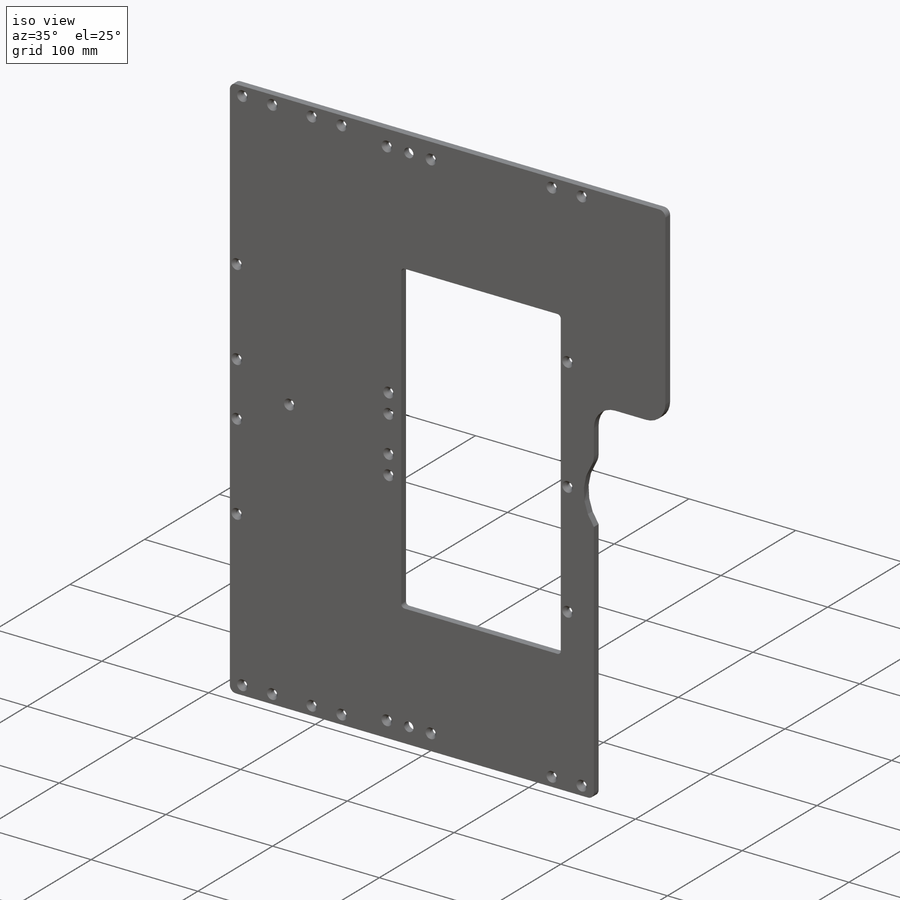
[diagram: iso view]
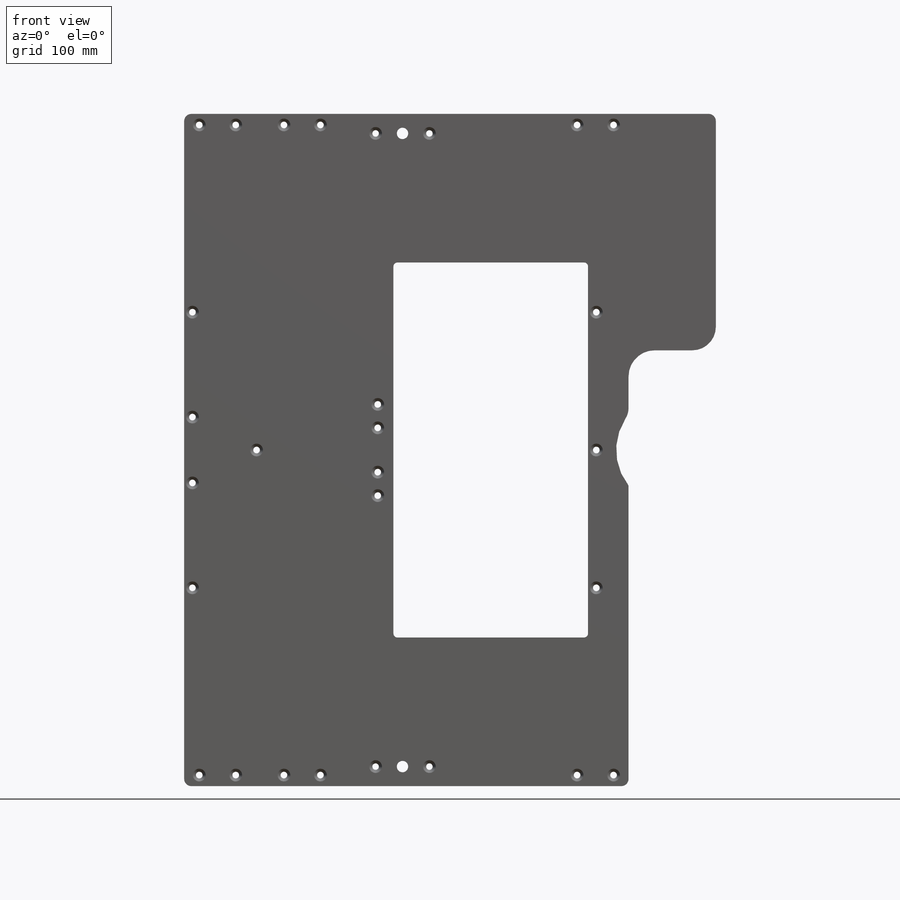
[diagram: front view]
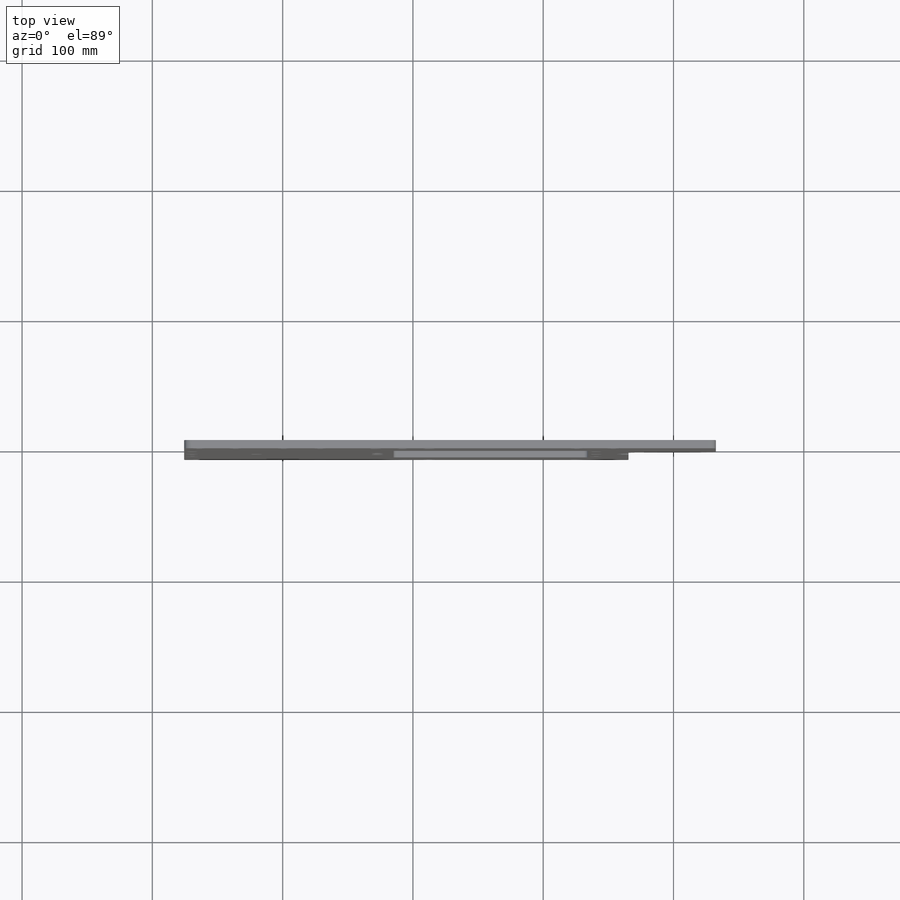
[diagram: top view]
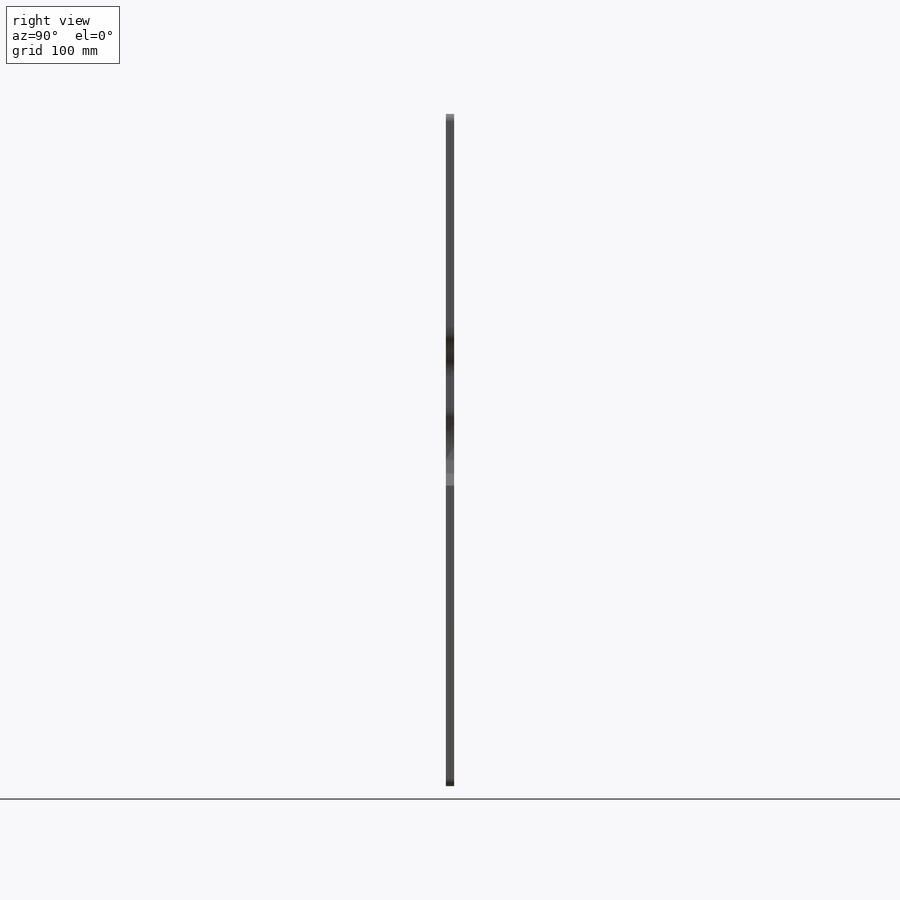
[diagram: right view]
SOLIDWORKS PART (.sldprt)
format: sldprt  version: not decoded by parser v0  size: 548,352 bytes
history: native  units: mm
features: sketch x16, hole x5, fillet x2, material x1, extrude x1, cut_extrude x1 (+11 scaffold rows collapsed)
feature tree (37):
  scaffold x11  (default folders/planes/origin — collapsed)
  material  "6061-T6 (SS)"
  sketch  "Sketch1"  dims[c1.D1=88.0mm c1.D6=100.2mm c1.D10=30.0mm c1.D11=10.0mm c1.D14=20.0mm c1.D15=18.0mm c1.D16=15.0mm c1.D2=32.5mm c1.D3=34.5mm c1.D4=516.0mm c1.D5=~45.598071mm c2.D5=~0.90778deg c3.D5=375.6002mm c3.D7=43.0mm c3.D8=85.0mm c3.D9=24.0mm c3.D12=8.5mm c3.D13=8.5mm]
  extrude  "Boss-Extrude1"  Depth=6.35mm
  sketch  "Sketch2"  dims[D1=65.6002mm D2=~143.885708mm D3=214.975mm]
  cut_extrude  "Cut-Extrude1"  [1 undecoded]
  fillet  "Fillet1"  Radius=3mm
  sketch  "top and bottom hole positions"  dims[c1.D1=8.5mm c1.D2=28.0mm c1.D3=72.0mm c1.D4=72.0mm c1.D5=231.3mm c1.D6=8.5mm c1.D7=8.5mm c2.D5=355.6002mm c2.D8=207.5mm c2.D4=12.0mm c3.D5=208.6002mm c3.D3=60.0mm c3.D4=350.0mm c4.D5=285.0mm]
  hole  "CSK for #10 Flat Head Machine Screw2"  Diameter=5.1054mm Depth=6.35mm
  sketch  "Sketch5"
  sketch  "Sketch4"  dims[hole-wizard template sketch: 55 standard entries collapsed; hole parameters kept: c17.Thru Hole Depth=6.35mm c17.Near C'Sink Dia.=9.779mm c17.D4=~3.666174mm c17.Near C'Sink Angle=82.0deg]
  hole  "CSK for #10 Flat Head Machine Screw1"  Diameter=5.1054mm Depth=6.35mm
  sketch  "Sketch7"  dims[D1=6.3627mm D2=38.1mm D3=~80.507217mm D4=6.3627mm]
  sketch  "Sketch6"  dims[hole-wizard template sketch: 55 standard entries collapsed; hole parameters kept: c17.Thru Hole Depth=6.35mm c17.Near C'Sink Dia.=9.779mm c17.D4=~3.666174mm c17.Near C'Sink Angle=82.0deg]
  sketch  "bearing hole positions"  dims[c1.D1=9.0mm c1.D2=240.0mm c1.D3=82.0mm c1.D4=15.5mm c2.D1=227.0mm c2.D2=52.0mm c2.D3=9.0mm c2.D4=320.0mm]
  hole  "CSK for #10 Flat Head Machine Screw3"  Diameter=5.1054mm Depth=6.35mm
  sketch  "Sketch10"
  sketch  "Sketch9"  dims[hole-wizard template sketch: 55 standard entries collapsed; hole parameters kept: c17.Thru Hole Depth=6.35mm c17.Near C'Sink Dia.=9.779mm c17.D4=~3.666174mm c17.Near C'Sink Angle=82.0deg]
  sketch  "hole position arm support"  dims[D1=224.475mm D2=19.0mm D3=56.0mm]
  sketch  "hole captured bolt"  dims[D1=208.0mm D2=41.275mm D3=15.0mm]
  hole  "CSK for #10 Flat Head Machine Screw5"  Diameter=4.9784mm Depth=6.35mm
  sketch  "Sketch16"
  sketch  "Sketch15"  dims[hole-wizard template sketch: 54 standard entries collapsed; hole parameters kept: c17.Thru Hole Dia.=4.9784mm c17.Thru Hole Depth=6.35mm c17.Near C'Sink Dia.=9.779mm c17.D4=~3.666174mm c17.Near C'Sink Angle=82.0deg]
  hole  "5/16 Clearance Hole1"  Diameter=8.72998mm Depth=6.35mm
  sketch  "Sketch18"
  sketch  "Sketch17"  dims[hole-wizard template sketch: 59 standard entries collapsed; hole parameters kept: c18.Thru Hole Dia.=~8.72998mm c18.Thru Hole Depth=6.35mm]
  fillet  "Fillet2"  Radius=5.5mm
decode coverage: 20 of 25 modeling features carry decoded parameters
note: ~ marks probable driven/reference dimensions
note: 1 parameter value undecoded
summary: Diameter pulled from absorbed wizard sketch
note: suppression state not decoded; provenance and decode notes live in map.json
